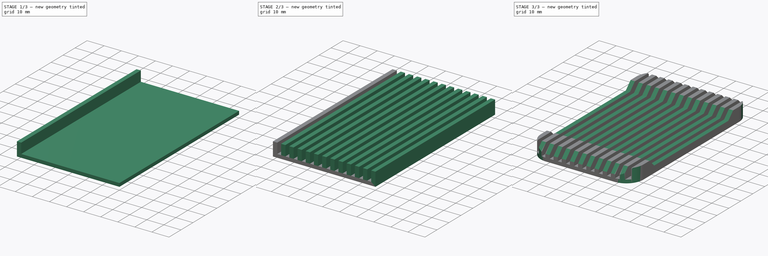
[diagram: build sequence overview — one tinted view per stage of 3, left to right]
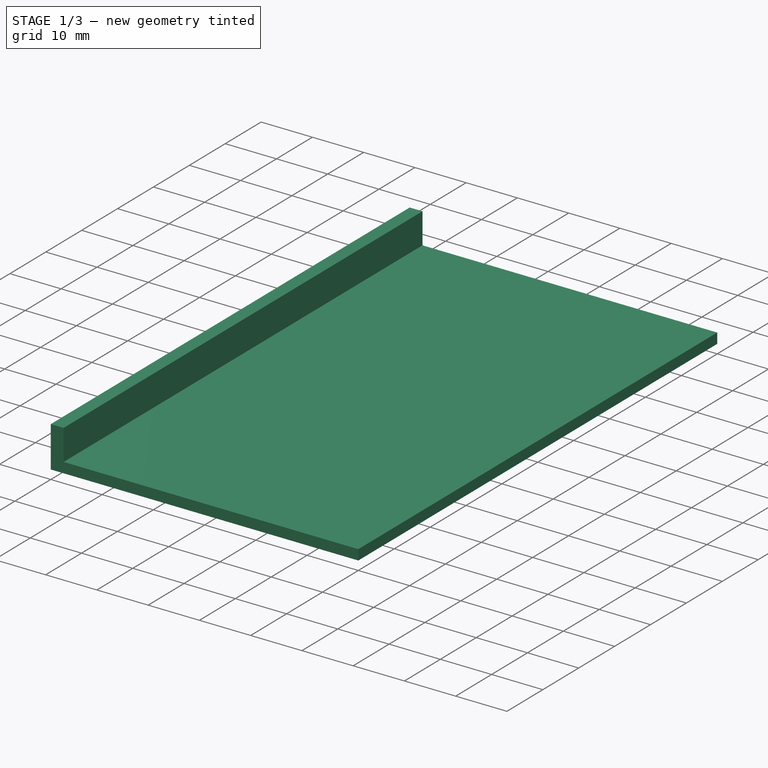
[diagram: stage 1 of 3 — iso view after this stage's code; geometry added in this stage tinted green]
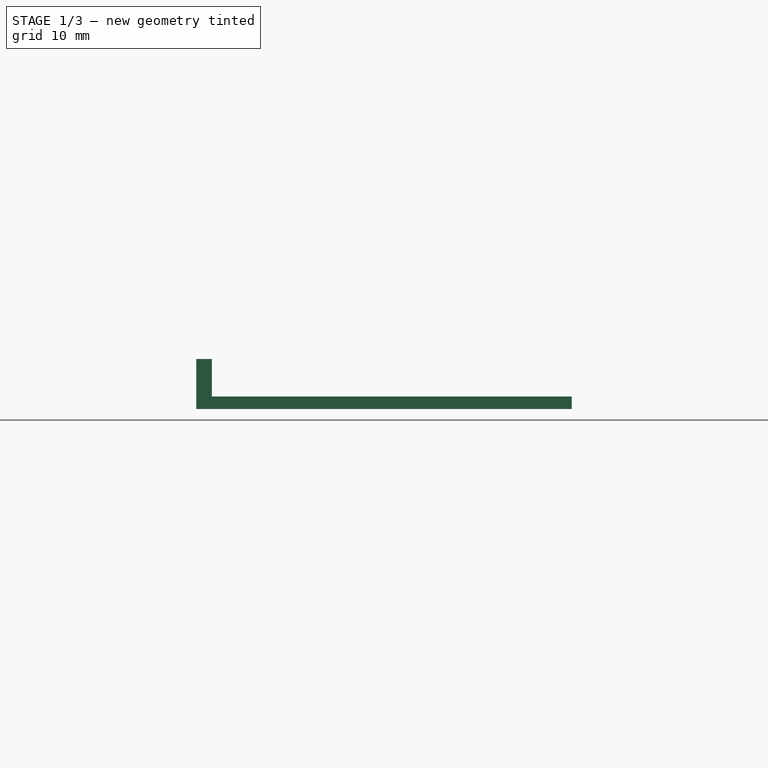
[diagram: stage 1 of 3 — front view after this stage's code; geometry added in this stage tinted green]
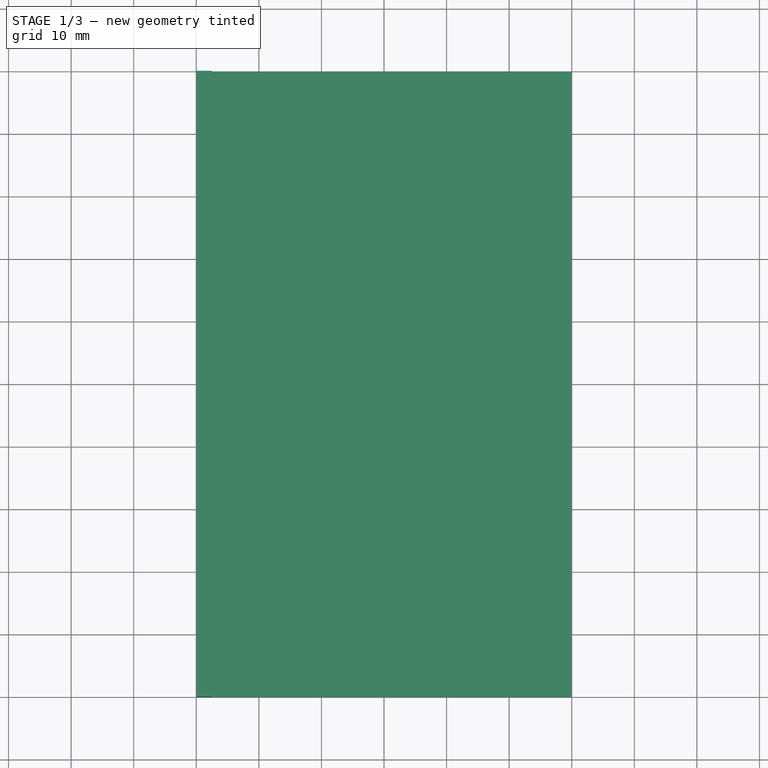
[diagram: stage 1 of 3 — top view after this stage's code; geometry added in this stage tinted green]
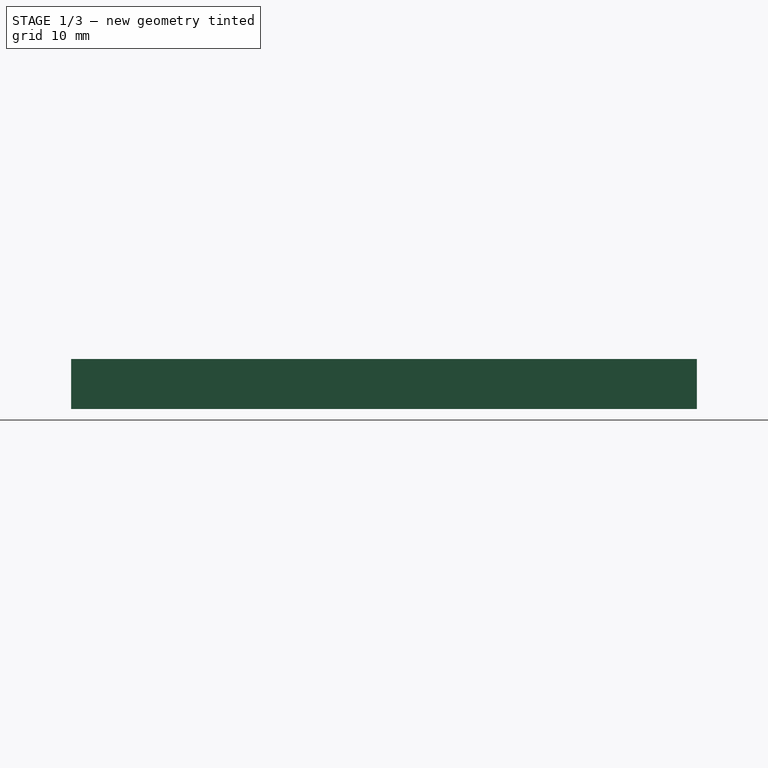
[diagram: stage 1 of 3 — right view after this stage's code; geometry added in this stage tinted green]
FCSTD DOCUMENT  (FreeCAD 0.18R15969 (Git))
Label: pcb-holder
License: All rights reserved
LicenseURL: http://en.wikipedia.org/wiki/All_rights_reserved
objects: Sketcher::SketchObject×3, PartDesign::Pad×2, PartDesign::LinearPattern×1, PartDesign::Pocket×1, PartDesign::Fillet×1, PartDesign::Body×1
note: 12 computed .brp shape members not serialized (recipe doc carries the construction recipe); baked Part::Feature solids carry a one-line shape summary decoded from their .brp

FEATURE [Sketcher::SketchObject] Sketch
  MapMode = 5
  Support = -> [XY_Plane]
  sketch-geometry (7):
    g0: LineSegment StartX=-30 StartY=50 StartZ=0 EndX=30 EndY=50 EndZ=0
    g1: LineSegment StartX=30 StartY=50 StartZ=0 EndX=30 EndY=-50 EndZ=0
    g2: LineSegment StartX=30 StartY=-50 StartZ=0 EndX=-30 EndY=-50 EndZ=0
    g3: LineSegment StartX=-30 StartY=-50 StartZ=0 EndX=-30 EndY=50 EndZ=0
    g4: LineSegment [constr] StartX=-30 StartY=50 StartZ=0 EndX=0 EndY=0 EndZ=0
    g5: LineSegment [constr] StartX=0 StartY=0 StartZ=0 EndX=30 EndY=50 EndZ=0
    g6: LineSegment [constr] StartX=30 StartY=-50 StartZ=0 EndX=-3.6e-15 EndY=0 EndZ=0
  constraints (18):
    c: Coincident(g0,g1)
    c: Coincident(g1,g2)
    c: Coincident(g2,g3)
    c: Coincident(g3,g0)
    c: Horizontal(g0)
    c: Horizontal(g2)
    c: Vertical(g1)
    c: Vertical(g3)
    c: Coincident(g4,g0)
    c: Coincident(g4,g-1)
    c: Coincident(g5,g-1)
    c: Coincident(g5,g0)
    c: Coincident(g6,g1)
    c: Coincident(g6,g-1)
    c: Equal(g6,g5)
    c: Equal(g5,g4)
    c: DistanceX(g0,g0) = 60
    c: DistanceY(g3,g3) = 100
FEATURE [PartDesign::Pad] Pad
  Length = 2
  Length2 = 100
  Profile = -> Sketch
  Refine = true
  Type = 0
FEATURE [Sketcher::SketchObject] Sketch001
  MapMode = 5
  Placement = pos=(0,0,2) rot=(0,0,1;0rad)
  Support = -> [Pad]
  sketch-geometry (6):
    g0: LineSegment StartX=-30 StartY=-50 StartZ=0 EndX=-27.5 EndY=-50 EndZ=0
    g1: LineSegment StartX=-27.5 StartY=-50 StartZ=0 EndX=-27.5 EndY=50 EndZ=0
    g2: LineSegment StartX=-27.5 StartY=50 StartZ=0 EndX=-30 EndY=50 EndZ=0
    g3: LineSegment StartX=-30 StartY=50 StartZ=0 EndX=-30 EndY=-50 EndZ=0
    g4: LineSegment [constr] StartX=0 StartY=0 StartZ=0 EndX=-27.5 EndY=50 EndZ=0
    g5: LineSegment [constr] StartX=0 StartY=0 StartZ=0 EndX=-27.5 EndY=-50 EndZ=0
  constraints (16):
    c: Coincident(g0,g1)
    c: Coincident(g1,g2)
    c: Coincident(g2,g3)
    c: Coincident(g3,g0)
    c: Horizontal(g0)
    c: Horizontal(g2)
    c: Vertical(g1)
    c: Vertical(g3)
    c: DistanceX(g2,g2) = 2.5
    c: Coincident(g4,g-1)
    c: Coincident(g4,g1)
    c: Coincident(g5,g-1)
    c: Coincident(g5,g0)
    c: Equal(g4,g5)
    c: DistanceX(g2,g-1) = 30
    c: DistanceY(g3,g3) = 100
FEATURE [PartDesign::Pad] Pad001
  BaseFeature = -> Pad
  Length = 6
  Length2 = 100
  Profile = -> Sketch001
  Refine = true
  Type = 0
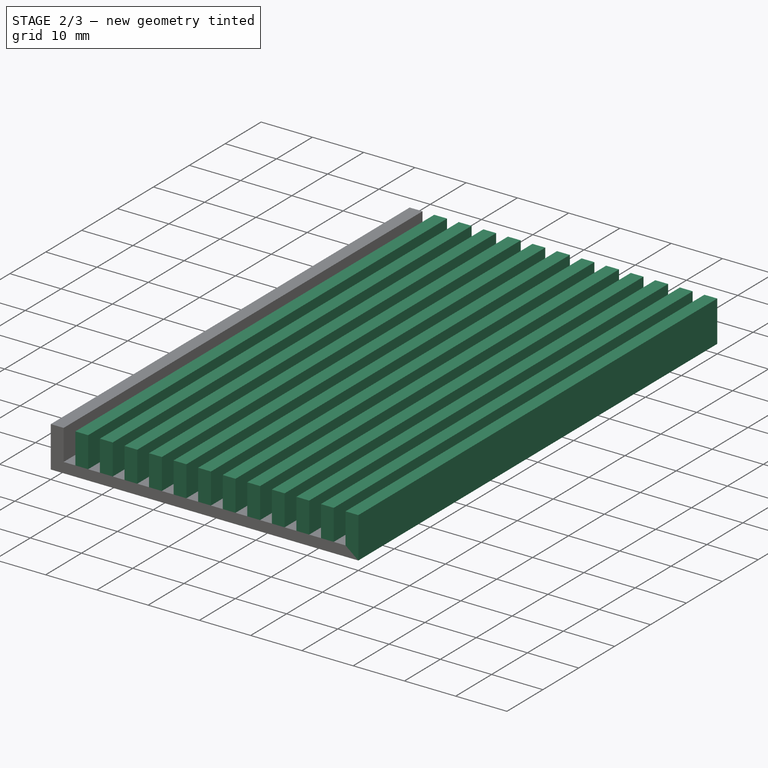
[diagram: stage 2 of 3 — iso view after this stage's code; geometry added in this stage tinted green]
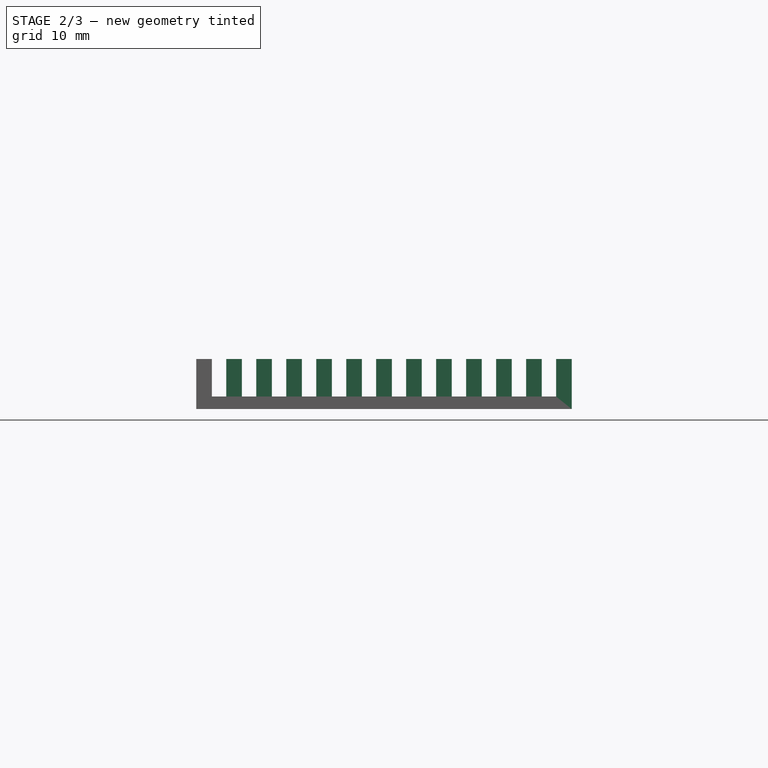
[diagram: stage 2 of 3 — front view after this stage's code; geometry added in this stage tinted green]
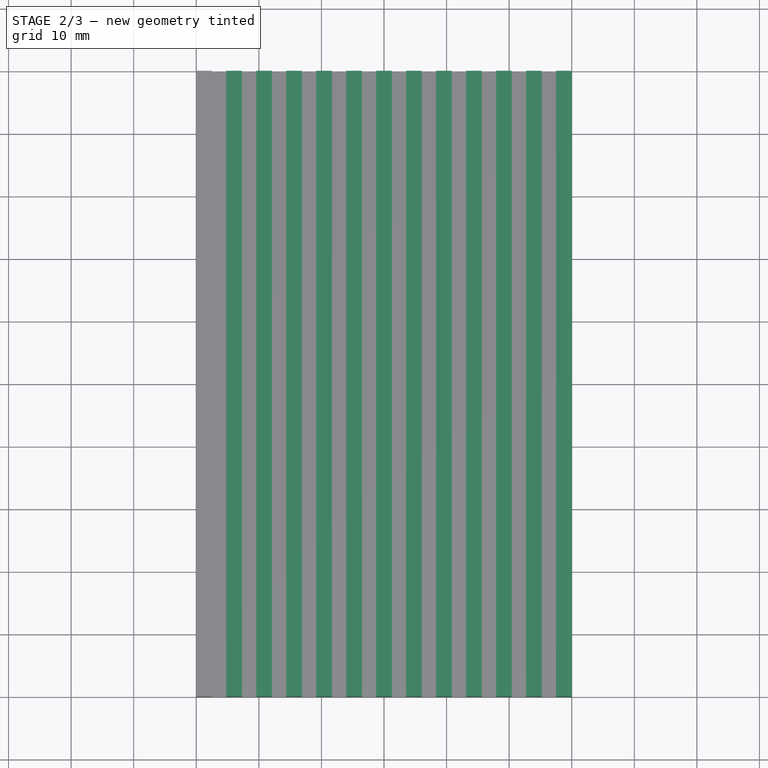
[diagram: stage 2 of 3 — top view after this stage's code; geometry added in this stage tinted green]
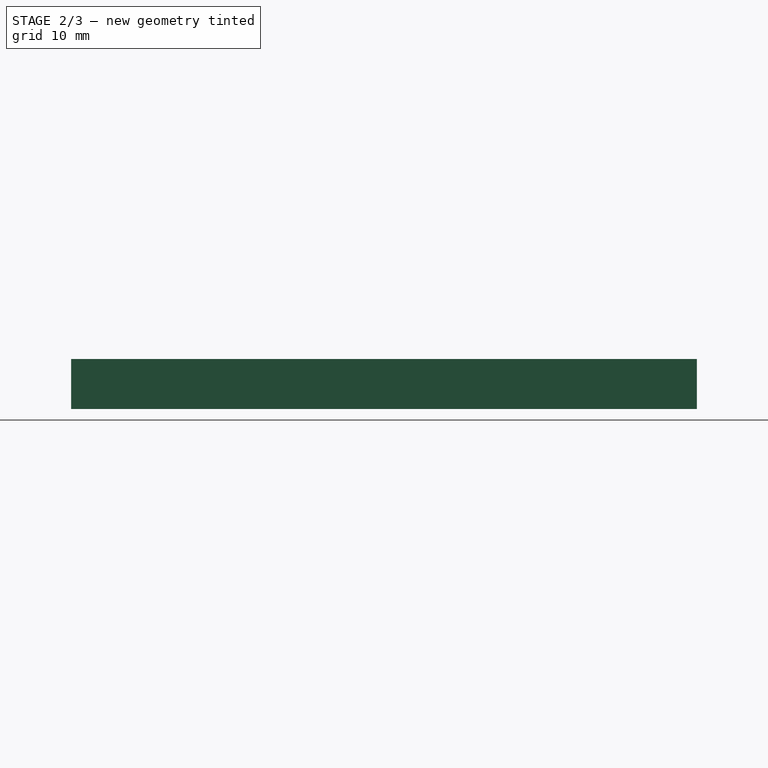
[diagram: stage 2 of 3 — right view after this stage's code; geometry added in this stage tinted green]
FEATURE [PartDesign::LinearPattern] LinearPattern
  BaseFeature = -> Pad001
  Direction = -> X_Axis
  Length = 57.5
  Occurrences = 13
  Originals = -> [Pad001]
  Refine = true
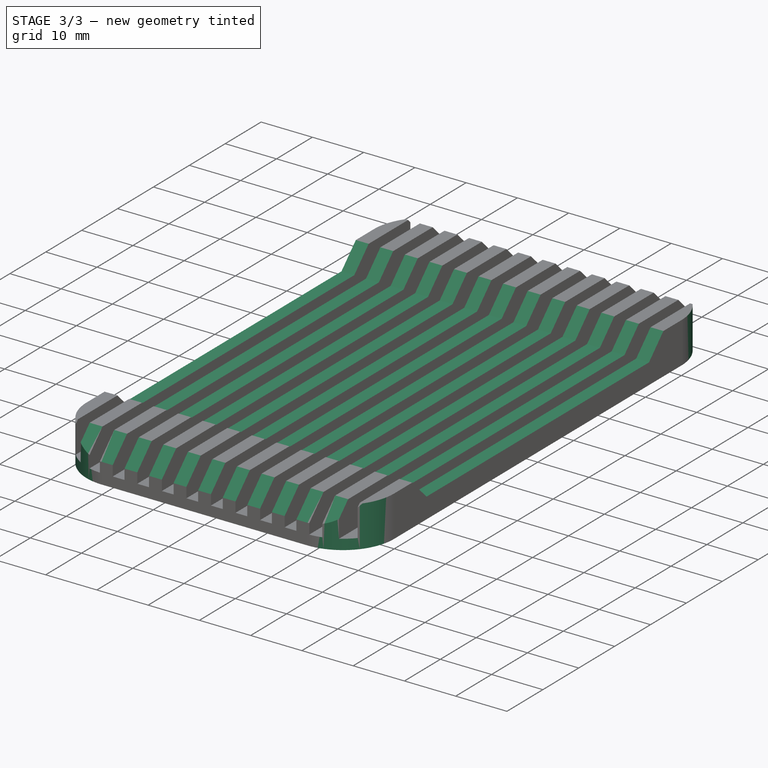
[diagram: stage 3 of 3 — iso view after this stage's code; geometry added in this stage tinted green]
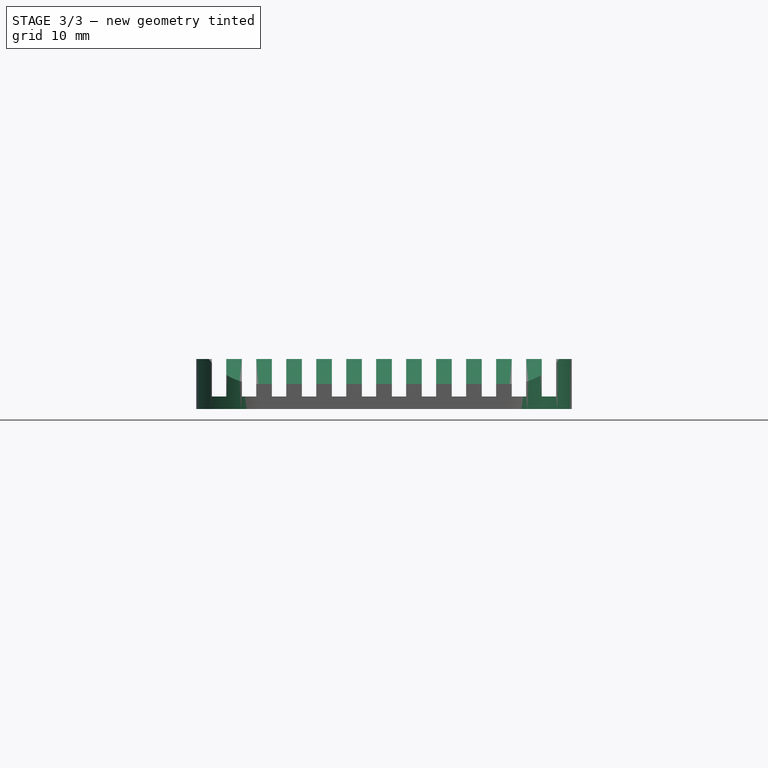
[diagram: stage 3 of 3 — front view after this stage's code; geometry added in this stage tinted green]
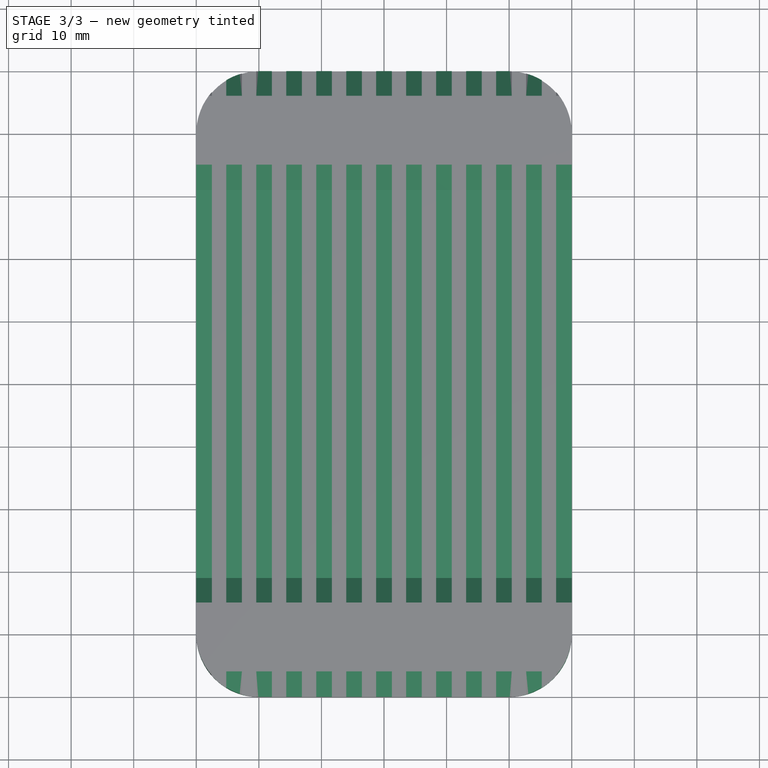
[diagram: stage 3 of 3 — top view after this stage's code; geometry added in this stage tinted green]
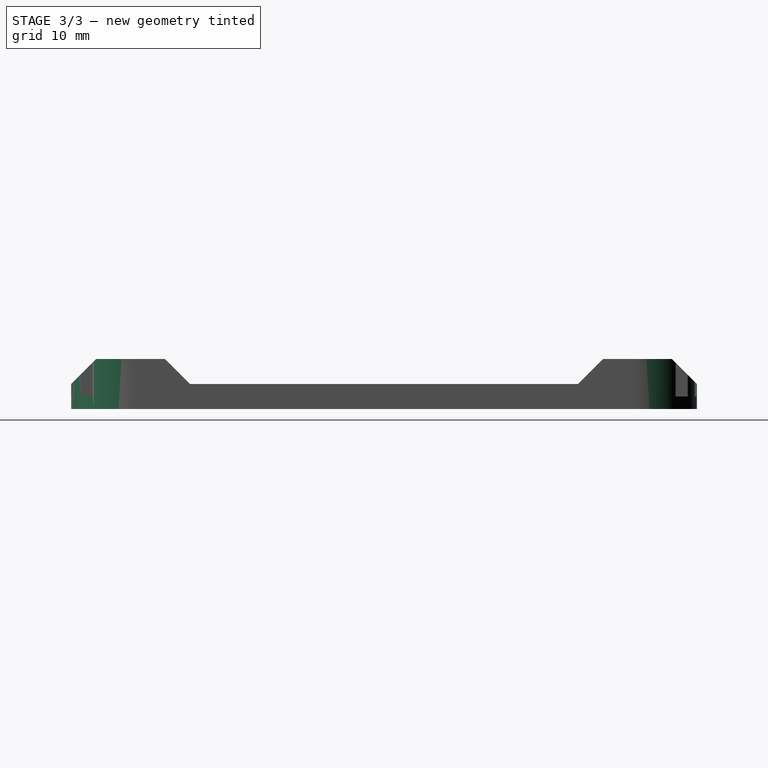
[diagram: stage 3 of 3 — right view after this stage's code; geometry added in this stage tinted green]
FEATURE [Sketcher::SketchObject] Sketch002
  MapMode = 5
  Placement = pos=(-30,0,-1.31e-14) rot=(0.57735,-0.57735,-0.57735;2.0944rad)
  Support = -> [LinearPattern]
  sketch-geometry (13):
    g0: LineSegment StartX=35 StartY=8 StartZ=0 EndX=31 EndY=4 EndZ=0
    g1: LineSegment StartX=31 StartY=4 StartZ=0 EndX=-31 EndY=4 EndZ=0
    g2: LineSegment StartX=-31 StartY=4 StartZ=0 EndX=-35 EndY=8 EndZ=0
    g3: LineSegment StartX=-35 StartY=8 StartZ=0 EndX=0 EndY=8 EndZ=0
    g4: LineSegment StartX=0 StartY=8 StartZ=0 EndX=35 EndY=8 EndZ=0
    g5: LineSegment StartX=-50 StartY=4 StartZ=0 EndX=-46 EndY=8 EndZ=0
    g6: LineSegment StartX=-46 StartY=8 StartZ=0 EndX=-50 EndY=8 EndZ=0
    g7: LineSegment StartX=-50 StartY=8 StartZ=0 EndX=-50 EndY=4 EndZ=0
    g8: LineSegment [constr] StartX=-46 StartY=8 StartZ=0 EndX=-35 EndY=8 EndZ=0
    g9: LineSegment StartX=50 StartY=8 StartZ=0 EndX=50 EndY=4 EndZ=0
    g10: LineSegment StartX=50 StartY=8 StartZ=0 EndX=46 EndY=8 EndZ=0
    g11: LineSegment StartX=46 StartY=8 StartZ=0 EndX=50 EndY=4 EndZ=0
    g12: LineSegment [constr] StartX=46 StartY=8 StartZ=0 EndX=35 EndY=8 EndZ=0
  constraints (37):
    c: Coincident(g1,g2)
    c: Coincident(g2,g3)
    c: PointOnObject(g3,g-2)
    c: Horizontal(g3)
    c: Coincident(g3,g4)
    c: Horizontal(g4)
    c: Equal(g3,g4)
    c: Coincident(g0,g4)
    c: Symmetric(g0,g1,g-2)
    c: DistanceY(g-1,g3) = 8
    c: DistanceX(g2,g3) = 35
    c: DistanceY(g1,g2) = 4
    c: DistanceX(g2,g1) = 4
    c: Coincident(g1,g0)
    c: Coincident(g6,g5)
    c: Coincident(g7,g6)
    c: Coincident(g7,g5)
    c: Vertical(g7)
    c: Horizontal(g6)
    c: Equal(g6,g7)
    c: DistanceX(g6,g6) = 4
    c: Coincident(g8,g5)
    c: Coincident(g8,g2)
    c: Horizontal(g8)
    c: DistanceX(g6,g3) = 50
    c: Vertical(g9)
    c: Coincident(g10,g9)
    c: Horizontal(g10)
    c: Coincident(g11,g10)
    c: Coincident(g11,g9)
    c: Equal(g9,g10)
    c: Coincident(g12,g10)
    c: Coincident(g12,g0)
    c: Equal(g8,g12)
    c: Horizontal(g12)
    c: Equal(g10,g9)
    c: Equal(g9,g7)
FEATURE [PartDesign::Pocket] Pocket
  BaseFeature = -> LinearPattern
  Length = 5
  Length2 = 100
  Profile = -> Sketch002
  Refine = true
  Type = 1
FEATURE [PartDesign::Fillet] Fillet
  Base = -> Pocket [Edge113,Edge6,Edge65,Edge55]
  BaseFeature = -> Pocket
  Radius = 10
FEATURE [PartDesign::Body] Body
  Group = -> [Sketch,Pad,Sketch001,Pad001,LinearPattern,Sketch002,Pocket,Fillet]
  Origin = -> Origin
  Tip = -> Fillet
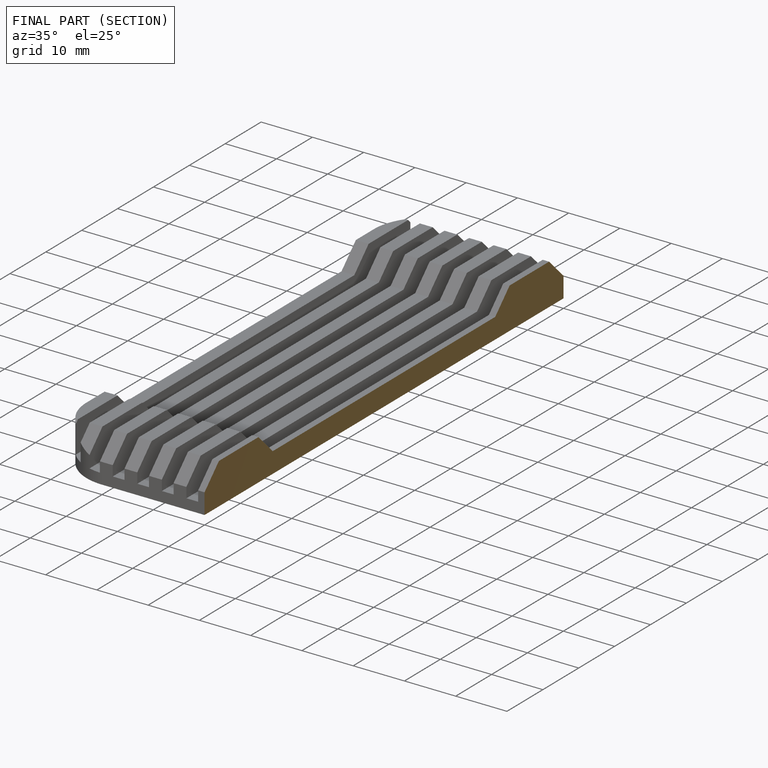
[diagram: finished part — half-section view (interior)]
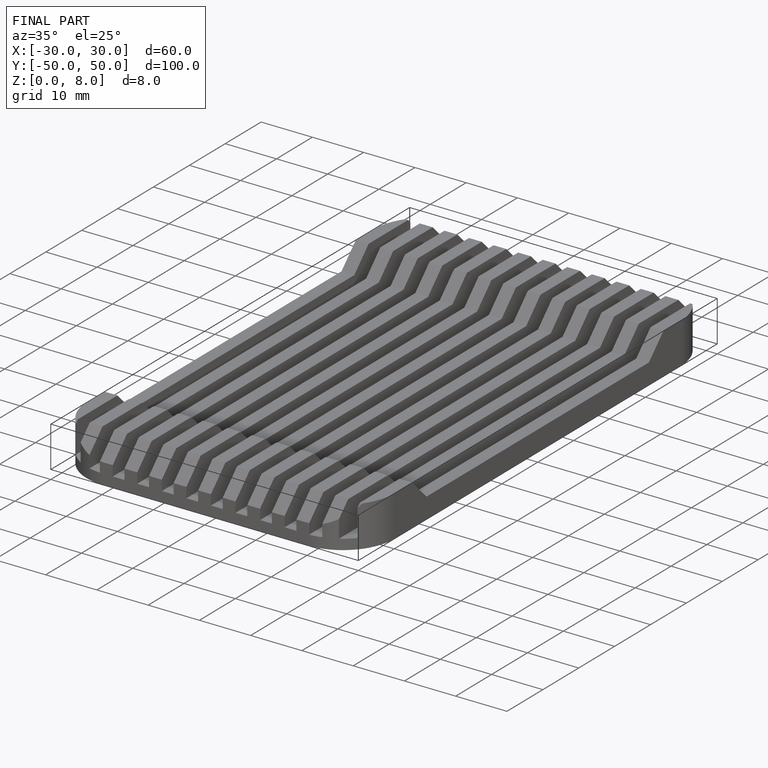
[diagram: finished part — iso view with bounding-box wireframe]
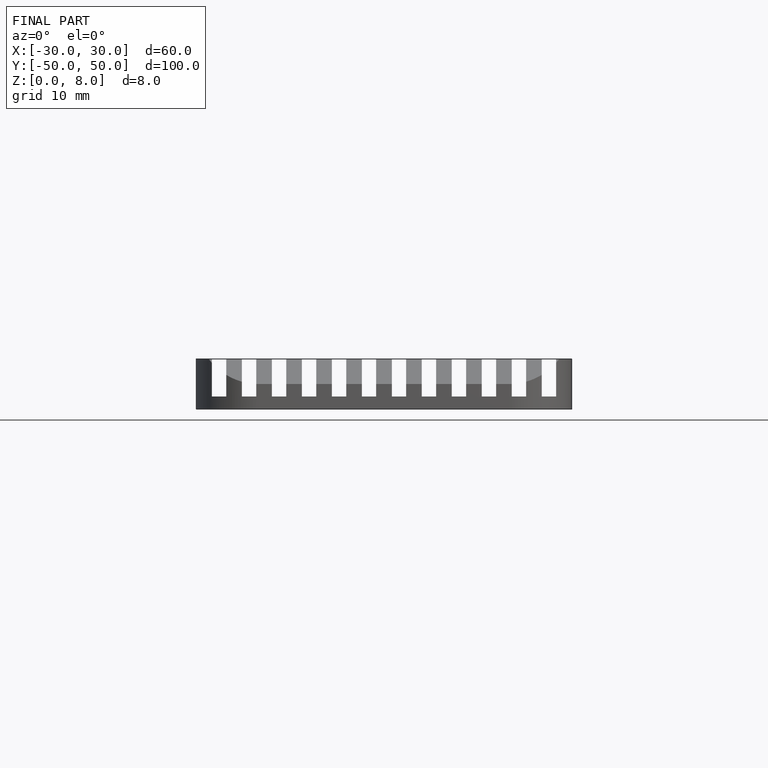
[diagram: finished part — front view with bounding-box wireframe]
